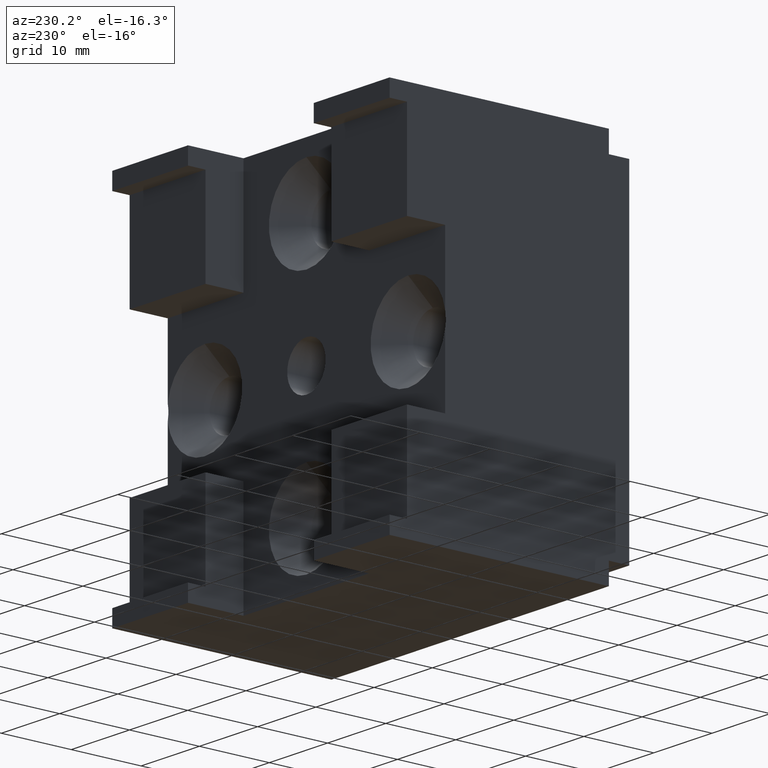
[diagram: clean part render]
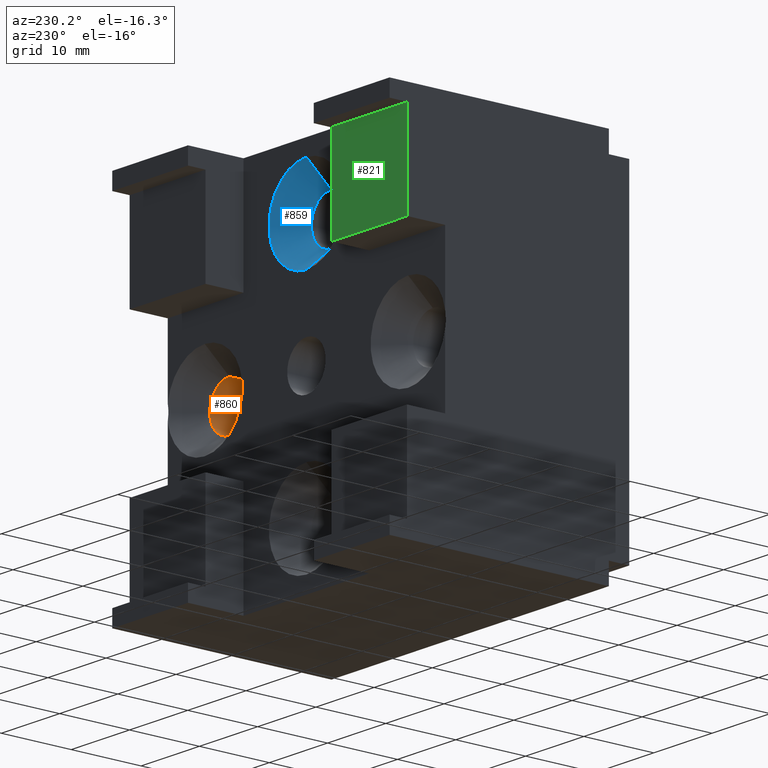
[diagram: same view with three faces highlighted in distinct colors, each labeled with its STEP entity id]
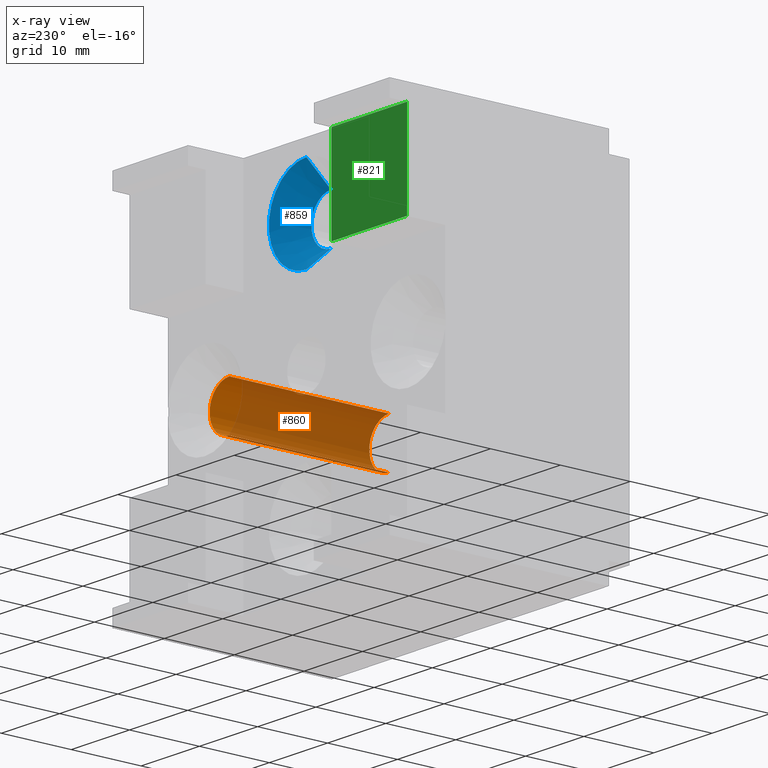
[diagram: x-ray of the same camera — body ghosted, the three highlighted faces saturated]
A machine part, auxiliary view with three faces highlighted in distinct colors.
The next image is the same camera in x-ray (body ghosted, the three faces saturated) — at least one of them is partly hidden behind the body in this view.
Their STEP definitions:

[orange] entity #860 — the highlighted cylindrical surface (edge-blend (fillet) strip) has radius 3.3782 mm, axis along (-0, 1, -0).
#194 = CYLINDRICAL_SURFACE ( 'NONE', #1301, 0.1329999999999997300 ) ;
#206 = CARTESIAN_POINT ( 'NONE',  ( 0.6874999999999996700, 1.037500000000000100, 0.1329999999999997300 ) ) ;
#213 = DIRECTION ( 'NONE',  ( -1.309289925027225900E-017, 1.000000000000000000, -3.229997658014709200E-019 ) ) ;
#264 = CARTESIAN_POINT ( 'NONE',  ( 0.6874999999999996700, 0.8988806069298686000, 0.0000000000000000000 ) ) ;
#266 = DIRECTION ( 'NONE',  ( -1.309289925027225900E-017, 1.000000000000000000, -3.229997658014709200E-019 ) ) ;
#267 = DIRECTION ( 'NONE',  ( 0.0000000000000000000, 0.0000000000000000000, 1.000000000000000000 ) ) ;
#307 = CARTESIAN_POINT ( 'NONE',  ( 0.6874999999999996700, -4.295896885159556400E-020, -0.1329999999999997900 ) ) ;
#320 = CARTESIAN_POINT ( 'NONE',  ( 0.6874999999999996700, -4.295896885159558800E-020, 0.1329999999999997300 ) ) ;
#325 = CARTESIAN_POINT ( 'NONE',  ( 0.6874999999999996700, 0.8988806069298686000, 0.1329999999999998700 ) ) ;
#367 = CARTESIAN_POINT ( 'NONE',  ( 0.6874999999999996700, 0.8988806069298686000, -0.1329999999999999000 ) ) ;
#408 = CARTESIAN_POINT ( 'NONE',  ( 0.6874999999999996700, 0.0000000000000000000, 0.0000000000000000000 ) ) ;
#417 = DIRECTION ( 'NONE',  ( -1.309289925027225900E-017, 1.000000000000000000, -3.229997658014709200E-019 ) ) ;
#418 = DIRECTION ( 'NONE',  ( 0.0000000000000000000, -3.229997658014712600E-019, 1.000000000000000000 ) ) ;
#479 = CARTESIAN_POINT ( 'NONE',  ( 0.6874999999999996700, 1.037500000000000100, -0.1329999999999997300 ) ) ;
#482 = DIRECTION ( 'NONE',  ( -1.309289925027225900E-017, 1.000000000000000000, -3.229997658014709200E-019 ) ) ;
#636 = AXIS2_PLACEMENT_3D ( 'NONE', #408, #417, #418 ) ;
#860 = ADVANCED_FACE ( 'NONE', ( #872 ), #194, .F. ) ;
#872 = FACE_OUTER_BOUND ( 'NONE', #1703, .T. ) ;
#934 = DIRECTION ( 'NONE',  ( -1.309289925027225900E-017, 1.000000000000000000, -3.229997658014709200E-019 ) ) ;
#937 = CARTESIAN_POINT ( 'NONE',  ( 0.6874999999999996700, 1.037500000000000100, 0.0000000000000000000 ) ) ;
#938 = DIRECTION ( 'NONE',  ( 0.0000000000000000000, 0.0000000000000000000, 1.000000000000000000 ) ) ;
#990 = VECTOR ( 'NONE', #213, 39.37007874015748100 ) ;
#992 = LINE ( 'NONE', #206, #990 ) ;
#1028 = CIRCLE ( 'NONE', #1329, 0.1329999999999998700 ) ;
#1072 = CIRCLE ( 'NONE', #636, 0.1329999999999997300 ) ;
#1115 = LINE ( 'NONE', #479, #1124 ) ;
#1124 = VECTOR ( 'NONE', #482, 39.37007874015748100 ) ;
#1301 = AXIS2_PLACEMENT_3D ( 'NONE', #937, #934, #938 ) ;
#1329 = AXIS2_PLACEMENT_3D ( 'NONE', #264, #266, #267 ) ;
#1334 = EDGE_CURVE ( 'NONE', #1433, #1438, #992, .T. ) ;
#1355 = EDGE_CURVE ( 'NONE', #1438, #1508, #1028, .T. ) ;
#1420 = VERTEX_POINT ( 'NONE', #307 ) ;
#1433 = VERTEX_POINT ( 'NONE', #320 ) ;
#1438 = VERTEX_POINT ( 'NONE', #325 ) ;
#1508 = VERTEX_POINT ( 'NONE', #367 ) ;
#1617 = ORIENTED_EDGE ( 'NONE', *, *, #1781, .F. ) ;
#1618 = ORIENTED_EDGE ( 'NONE', *, *, #1751, .F. ) ;
#1619 = ORIENTED_EDGE ( 'NONE', *, *, #1334, .T. ) ;
#1620 = ORIENTED_EDGE ( 'NONE', *, *, #1355, .T. ) ;
#1703 = EDGE_LOOP ( 'NONE', ( #1617, #1618, #1619, #1620 ) ) ;
#1751 = EDGE_CURVE ( 'NONE', #1433, #1420, #1072, .T. ) ;
#1781 = EDGE_CURVE ( 'NONE', #1420, #1508, #1115, .T. ) ;

[blue] entity #859 — the highlighted conical surface has half-angle 41 deg.
#60 = EDGE_CURVE ( 'NONE', #1425, #1432, #521, .T. ) ;
#86 = AXIS2_PLACEMENT_3D ( 'NONE', #169, #175, #167 ) ;
#93 = AXIS2_PLACEMENT_3D ( 'NONE', #1528, #1546, #1527 ) ;
#167 = DIRECTION ( 'NONE',  ( -2.081668171172167300E-017, 0.0000000000000000000, 1.000000000000000000 ) ) ;
#169 = CARTESIAN_POINT ( 'NONE',  ( 0.0000000000000000000, 1.037500000000000100, 0.6875000000000002200 ) ) ;
#175 = DIRECTION ( 'NONE',  ( -1.309289925027225900E-017, 1.000000000000000000, -3.229997658014709200E-019 ) ) ;
#212 = CARTESIAN_POINT ( 'NONE',  ( -5.277028813921441500E-018, 1.037500000000000100, 0.9410000000000001700 ) ) ;
#218 = DIRECTION ( 'NONE',  ( -2.353830848766860400E-017, 0.7547095802227714600, 0.6560590289905079400 ) ) ;
#219 = CARTESIAN_POINT ( 'NONE',  ( 3.632182517230683400E-017, 1.037500000000000100, 0.4340000000000003300 ) ) ;
#220 = DIRECTION ( 'NONE',  ( 8.411969448401920200E-017, 0.7547095802227714600, -0.6560590289905079400 ) ) ;
#265 = CARTESIAN_POINT ( 'NONE',  ( 0.0000000000000000000, 0.8988806069298686000, 0.6875000000000002200 ) ) ;
#276 = DIRECTION ( 'NONE',  ( -1.309289925027225900E-017, 1.000000000000000000, -3.229997658014709200E-019 ) ) ;
#277 = DIRECTION ( 'NONE',  ( -2.081668171172166000E-017, 0.0000000000000000000, 1.000000000000000000 ) ) ;
#312 = CARTESIAN_POINT ( 'NONE',  ( -5.277028813921441500E-018, 1.037500000000000100, 0.9410000000000001700 ) ) ;
#314 = CARTESIAN_POINT ( 'NONE',  ( 2.675582745619807200E-017, 0.8988806069298686000, 0.5545000000000003300 ) ) ;
#316 = CARTESIAN_POINT ( 'NONE',  ( -2.768618667658979300E-018, 0.8988806069298686000, 0.8205000000000001200 ) ) ;
#319 = CARTESIAN_POINT ( 'NONE',  ( 3.632182517230683400E-017, 1.037500000000000100, 0.4340000000000003300 ) ) ;
#521 = CIRCLE ( 'NONE', #93, 0.2534999999999998900 ) ;
#859 = ADVANCED_FACE ( 'NONE', ( #963 ), #1330, .F. ) ;
#948 = AXIS2_PLACEMENT_3D ( 'NONE', #265, #276, #277 ) ;
#963 = FACE_OUTER_BOUND ( 'NONE', #1734, .T. ) ;
#987 = VECTOR ( 'NONE', #218, 39.37007874015748100 ) ;
#996 = LINE ( 'NONE', #212, #987 ) ;
#998 = LINE ( 'NONE', #219, #999 ) ;
#999 = VECTOR ( 'NONE', #220, 39.37007874015748100 ) ;
#1034 = CIRCLE ( 'NONE', #948, 0.1329999999999999200 ) ;
#1330 = CONICAL_SURFACE ( 'NONE', #86, 0.2534999999999998900, 0.7155849933176763300 ) ;
#1336 = EDGE_CURVE ( 'NONE', #1429, #1425, #996, .T. ) ;
#1337 = EDGE_CURVE ( 'NONE', #1427, #1432, #998, .T. ) ;
#1359 = EDGE_CURVE ( 'NONE', #1429, #1427, #1034, .T. ) ;
#1425 = VERTEX_POINT ( 'NONE', #312 ) ;
#1427 = VERTEX_POINT ( 'NONE', #314 ) ;
#1429 = VERTEX_POINT ( 'NONE', #316 ) ;
#1432 = VERTEX_POINT ( 'NONE', #319 ) ;
#1527 = DIRECTION ( 'NONE',  ( -2.081668171172167300E-017, 0.0000000000000000000, 1.000000000000000000 ) ) ;
#1528 = CARTESIAN_POINT ( 'NONE',  ( 0.0000000000000000000, 1.037500000000000100, 0.6875000000000002200 ) ) ;
#1546 = DIRECTION ( 'NONE',  ( -1.309289925027225900E-017, 1.000000000000000000, -3.229997658014709200E-019 ) ) ;
#1613 = ORIENTED_EDGE ( 'NONE', *, *, #1337, .F. ) ;
#1614 = ORIENTED_EDGE ( 'NONE', *, *, #1359, .F. ) ;
#1615 = ORIENTED_EDGE ( 'NONE', *, *, #1336, .T. ) ;
#1616 = ORIENTED_EDGE ( 'NONE', *, *, #60, .T. ) ;
#1734 = EDGE_LOOP ( 'NONE', ( #1613, #1614, #1615, #1616 ) ) ;

[green] entity #821 — the highlighted planar face has unit normal (-0, 1, 0).
#79 = AXIS2_PLACEMENT_3D ( 'NONE', #1134, #1153, #1152 ) ;
#333 = CARTESIAN_POINT ( 'NONE',  ( -0.9375000000000003300, 1.251999999999999600, 0.9399999999999998400 ) ) ;
#338 = CARTESIAN_POINT ( 'NONE',  ( -0.9375000000000003300, 1.251999999999999100, 0.4250000000000005400 ) ) ;
#341 = CARTESIAN_POINT ( 'NONE',  ( -0.4249999999999997100, 1.251999999999999100, 0.4249999999999999900 ) ) ;
#368 = CARTESIAN_POINT ( 'NONE',  ( -0.4250000000000002700, 1.251999999999999600, 0.9399999999999998400 ) ) ;
#449 = CARTESIAN_POINT ( 'NONE',  ( -0.9374999999999981100, 1.251999999999999100, 0.4250000000000005400 ) ) ;
#450 = DIRECTION ( 'NONE',  ( 1.000000000000000000, -1.309289925027226000E-017, -6.871210704103224700E-016 ) ) ;
#492 = CARTESIAN_POINT ( 'NONE',  ( -0.9375000000000003300, 1.251999999999999100, -1.031249999999999100 ) ) ;
#493 = DIRECTION ( 'NONE',  ( 4.540993631650288500E-017, -3.229997658014715900E-019, 1.000000000000000000 ) ) ;
#502 = CARTESIAN_POINT ( 'NONE',  ( -1.071405050315514400, 1.251999999999999600, 0.9399999999999998400 ) ) ;
#503 = DIRECTION ( 'NONE',  ( 1.000000000000000000, -1.309289925027226000E-017, -1.665152413738156500E-016 ) ) ;
#504 = CARTESIAN_POINT ( 'NONE',  ( -0.4249999999999997100, 1.251999999999999100, -1.031249999999999100 ) ) ;
#505 = DIRECTION ( 'NONE',  ( 2.044903693121349400E-016, -3.229997658014724600E-019, 1.000000000000000000 ) ) ;
#705 = ORIENTED_EDGE ( 'NONE', *, *, #1791, .T. ) ;
#706 = ORIENTED_EDGE ( 'NONE', *, *, #1786, .T. ) ;
#728 = ORIENTED_EDGE ( 'NONE', *, *, #1792, .F. ) ;
#729 = ORIENTED_EDGE ( 'NONE', *, *, #1767, .F. ) ;
#821 = ADVANCED_FACE ( 'NONE', ( #1306 ), #1140, .T. ) ;
#882 = VECTOR ( 'NONE', #493, 39.37007874015748100 ) ;
#889 = LINE ( 'NONE', #502, #890 ) ;
#890 = VECTOR ( 'NONE', #503, 39.37007874015748100 ) ;
#891 = LINE ( 'NONE', #504, #892 ) ;
#892 = VECTOR ( 'NONE', #505, 39.37007874015748100 ) ;
#1099 = LINE ( 'NONE', #449, #1100 ) ;
#1100 = VECTOR ( 'NONE', #450, 39.37007874015748100 ) ;
#1134 = CARTESIAN_POINT ( 'NONE',  ( -0.9375000000000003300, 1.251999999999999100, -1.031249999999999100 ) ) ;
#1140 = PLANE ( 'NONE',  #79 ) ;
#1152 = DIRECTION ( 'NONE',  ( -2.081668171172166700E-017, -3.229997658014712100E-019, 1.000000000000000000 ) ) ;
#1153 = DIRECTION ( 'NONE',  ( -1.309289925027225900E-017, 1.000000000000000000, 3.229997658014709200E-019 ) ) ;
#1306 = FACE_OUTER_BOUND ( 'NONE', #1659, .T. ) ;
#1322 = LINE ( 'NONE', #492, #882 ) ;
#1446 = VERTEX_POINT ( 'NONE', #333 ) ;
#1451 = VERTEX_POINT ( 'NONE', #338 ) ;
#1454 = VERTEX_POINT ( 'NONE', #341 ) ;
#1532 = VERTEX_POINT ( 'NONE', #368 ) ;
#1659 = EDGE_LOOP ( 'NONE', ( #728, #729, #706, #705 ) ) ;
#1767 = EDGE_CURVE ( 'NONE', #1451, #1454, #1099, .T. ) ;
#1786 = EDGE_CURVE ( 'NONE', #1451, #1446, #1322, .T. ) ;
#1791 = EDGE_CURVE ( 'NONE', #1446, #1532, #889, .T. ) ;
#1792 = EDGE_CURVE ( 'NONE', #1454, #1532, #891, .T. ) ;